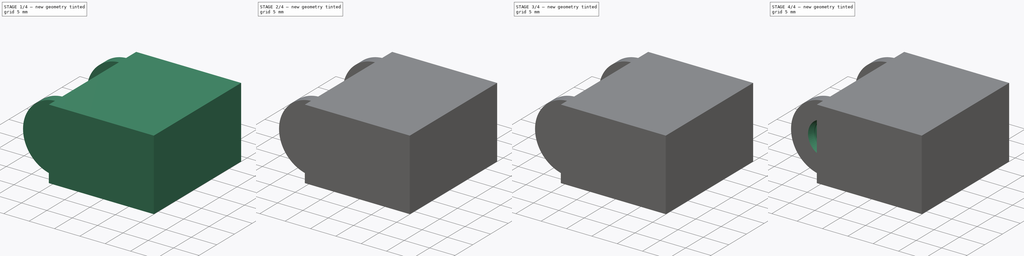
[diagram: build sequence overview — one tinted view per stage of 4, left to right]
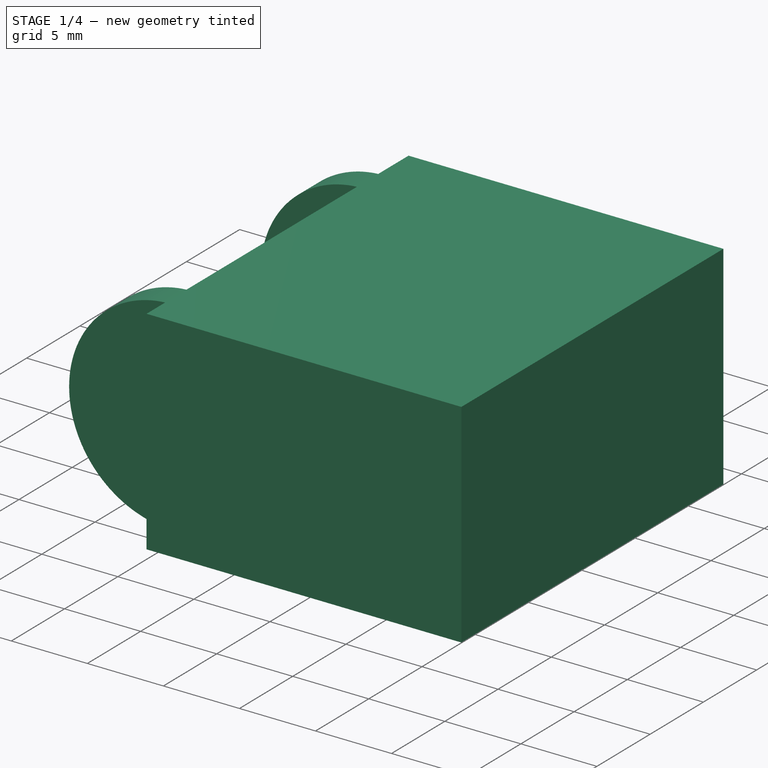
[diagram: stage 1 of 4 — iso view after this stage's code; geometry added in this stage tinted green]
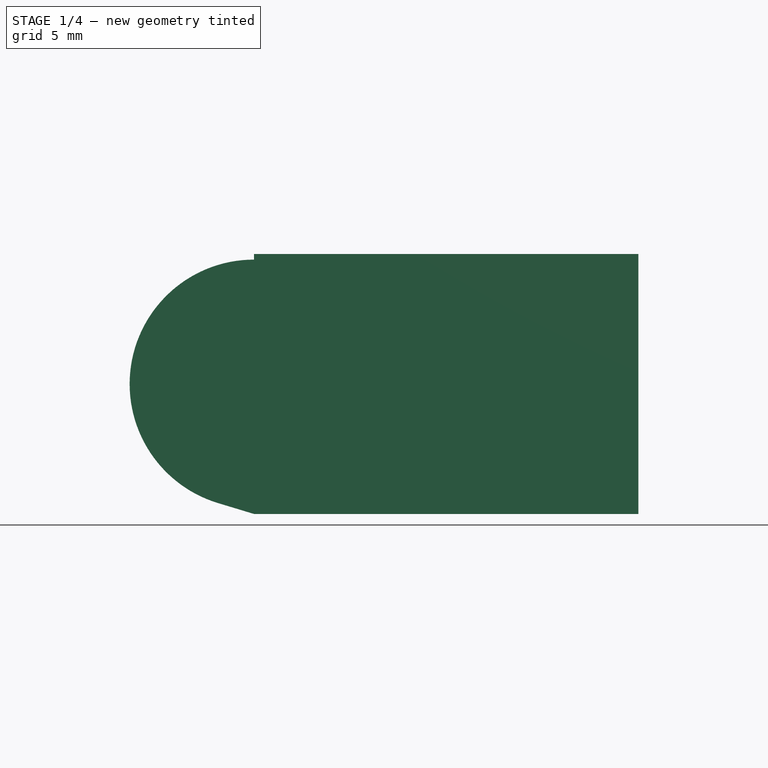
[diagram: stage 1 of 4 — front view after this stage's code; geometry added in this stage tinted green]
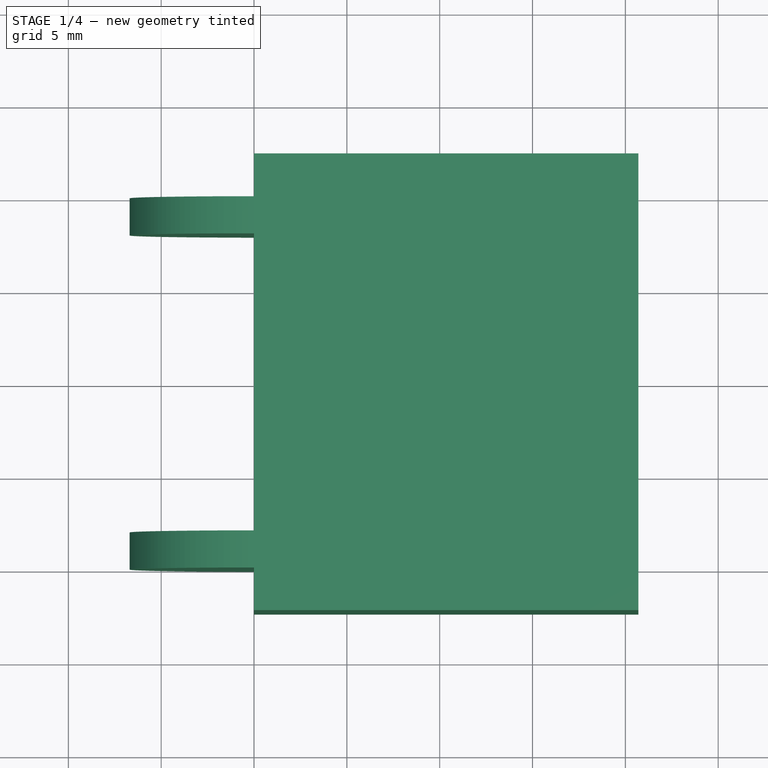
[diagram: stage 1 of 4 — top view after this stage's code; geometry added in this stage tinted green]
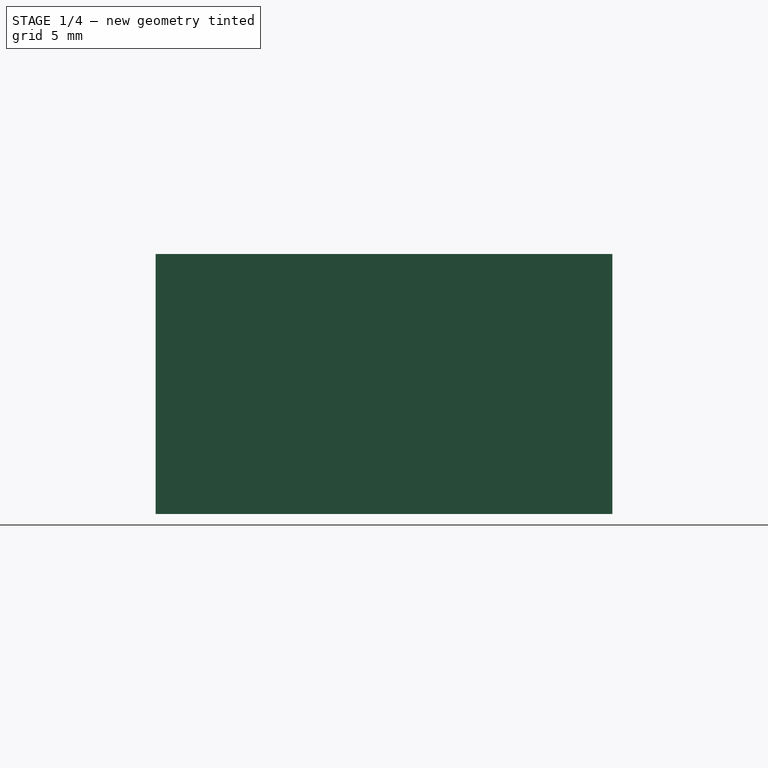
[diagram: stage 1 of 4 — right view after this stage's code; geometry added in this stage tinted green]
FCSTD DOCUMENT  (FreeCAD 0.18R4 (GitTag))
Label: Energy-Chain
License: All rights reserved
LicenseURL: http://en.wikipedia.org/wiki/All_rights_reserved
objects: Sketcher::SketchObject×10, PartDesign::Pocket×5, PartDesign::ShapeBinder×2, PartDesign::Pad×2, PartDesign::Mirrored×2, PartDesign::Body×2, Spreadsheet::Sheet×1, PartDesign::Revolution×1, PartDesign::Groove×1
note: 34 computed .brp shape members not serialized (recipe doc carries the construction recipe); baked Part::Feature solids carry a one-line shape summary decoded from their .brp

FEATURE [Spreadsheet::Sheet] Spreadsheet  label="params"
  cells = A1=Cross section dimensions; A2=Inner width; B2(iw)=16; A3=Inner height; B3(ih)=9.4; A4=wall thickness; B4(wt)=2; C4= min. 2.0 mm; A5=gap between parts; B5(gap)=0.3; A7=Dimensions of the chain-arch; A8=pitch; B8(pitch)=16; A9=No. of segments in arc; B9(nr_segments)=6; C9= (4 segments with a 45° angle between the segments); A12=Results; A13=bending diameter =; B13==pitch / tan(180 / (2 * nr_segments)); A14=installation height = ; B14==B13 + ih + 2 * (wt + gap)
FEATURE [Sketcher::SketchObject] Sketch  label="Mstr-Sketch-Side"
  MapMode = 5
  Placement = pos=(0,0,0) rot=(1,0,0;1.5708rad)
  expr: Constraints[43] = 180 / params.nr_segments
  expr: Constraints[32] = params.ih / 2
  expr: Constraints[22] = params.ih / 2
  expr: Constraints[13] = params.ih / 2 + params.wt + params.gap
  expr: Constraints[39] = params.ih / 2 + params.wt - params.gap / 2
  expr: Constraints[12] = params.ih / 2 + params.wt
  expr: Constraints[5] = params.ih / 2 + params.wt + params.gap / 2
  expr: Constraints[2] = params.pitch
  sketch-geometry (16):
    g0: ArcOfCircle CenterX=0 CenterY=0 CenterZ=0 NormalX=0 NormalY=0 NormalZ=1 AngleXU=0 Radius=6.7 StartAngle=1.5708 EndAngle=4.41856
    g1: ArcOfCircle CenterX=16 CenterY=0 CenterZ=0 NormalX=0 NormalY=0 NormalZ=1 AngleXU=0 Radius=7 StartAngle=1.86462 EndAngle=3.93163
    g2: Circle CenterX=0 CenterY=0 CenterZ=0 NormalX=0 NormalY=0 NormalZ=1 AngleXU=0 Radius=3.425
    g3: LineSegment StartX=-2.43076e-05 StartY=6.7 StartZ=0 EndX=13.9727 EndY=6.7 EndZ=0
    g4: LineSegment StartX=17.5588 StartY=6.7 StartZ=0 EndX=20.0703 EndY=2.35 EndZ=0
    g5: LineSegment StartX=20.7 StartY=-6e-16 StartZ=0 EndX=20.7 EndY=-7 EndZ=0
    g6: LineSegment StartX=-1.94045 StartY=-6.41285 StartZ=0 EndX=0 EndY=-7 EndZ=0
    g7: LineSegment StartX=0 StartY=-7 StartZ=0 EndX=11.0733 EndY=-7 EndZ=0
    g8: LineSegment StartX=13.9727 StartY=6.7 StartZ=0 EndX=17.5588 EndY=6.7 EndZ=0
    g9: LineSegment StartX=4.69998 StartY=6.7 StartZ=0 EndX=4.69998 EndY=-7 EndZ=0
    g10: LineSegment StartX=11.0733 StartY=-4.97267 StartZ=0 EndX=11.0733 EndY=-7 EndZ=0
    g11: LineSegment StartX=11.0733 StartY=-7 StartZ=0 EndX=20.7 EndY=-7 EndZ=0
    g12: ArcOfCircle CenterX=16 CenterY=0 CenterZ=0 NormalX=0 NormalY=0 NormalZ=1 AngleXU=0 Radius=4.7 StartAngle=0 EndAngle=0.523599
    g13: Circle [constr] CenterX=16 CenterY=0 CenterZ=0 NormalX=0 NormalY=0 NormalZ=1 AngleXU=0 Radius=7
    g14: Circle CenterX=16 CenterY=0 CenterZ=0 NormalX=0 NormalY=0 NormalZ=1 AngleXU=0 Radius=3.275
    g15: LineSegment [constr] StartX=20.7 StartY=-6e-16 StartZ=0 EndX=20.7 EndY=6.7 EndZ=0
  constraints (44):
    c: PointOnObject(g1,g-1)
    c: Coincident(g0,g-1)
    c: DistanceX(g0,g1) = 16
    c: Coincident(g2,g0)
    c: Horizontal(g3)
    c: Diameter(g2) = 6.85
    c: Coincident(g0,g3)
    c: Tangent(g3,g0)
    c: Vertical(g5)
    c: Coincident(g6,g0)
    c: Coincident(g7,g6)
    c: Horizontal(g7)
    c: DistanceY(g0,g0) = 6.7
    c: Radius(g1) = 7
    c: Tangent(g1,g7)
    c: Tangent(g0,g6)
    c: Coincident(g1,g3)
    c: Coincident(g8,g1)
    c: Horizontal(g8)
    c: Coincident(g4,g8)
    c: PointOnObject(g9,g3)
    c: Vertical(g9)
    c: DistanceX(g0,g9) = 4.7
    c: Vertical(g10)
    c: Coincident(g10,g7)
    c: Coincident(g10,g1)
    c: Coincident(g11,g7)
    c: Coincident(g11,g5)
    c: Horizontal(g11)
    c: Equal(g6,g10)
    c: Tangent(g4,g12) = 1.5708
    c: Tangent(g5,g12) = 1.5708
    c: Radius(g12) = 4.7
    c: Coincident(g12,g1)
    c: PointOnObject(g6,g-2)
    c: PointOnObject(g9,g7)
    c: Coincident(g13,g1)
    c: PointOnObject(g1,g13)
    c: Coincident(g14,g1)
    c: Diameter(g14) = 6.55
    c: Coincident(g15,g5)
    c: Vertical(g15)
    c: PointOnObject(g15,g8)
    c: Angle(g15,g4) = 0.523599
FEATURE [Sketcher::SketchObject] Sketch001
  MapMode = 5
  Support = -> [XY_Plane]
  expr: Constraints[31] = params.iw + 4 * params.wt + 2 * params.gap
  expr: Constraints[25] = params.ih / 2
  expr: Constraints[24] = params.ih / 2 + params.wt
  expr: Constraints[32] = params.pitch
  expr: Constraints[26] = params.wt
  expr: Constraints[34] = params.iw
  sketch-geometry (12):
    g0: LineSegment StartX=-6.7 StartY=10 StartZ=0 EndX=4.7 EndY=10 EndZ=0
    g1: LineSegment StartX=4.7 StartY=10 StartZ=0 EndX=4.7 EndY=12.3 EndZ=0
    g2: LineSegment StartX=4.7 StartY=12.3 StartZ=0 EndX=20.7 EndY=12.3 EndZ=0
    g3: LineSegment StartX=20.7 StartY=12.3 StartZ=0 EndX=20.7 EndY=-12.3 EndZ=0
    g4: LineSegment StartX=20.7 StartY=-12.3 StartZ=0 EndX=4.7 EndY=-12.3 EndZ=0
    g5: LineSegment StartX=4.7 StartY=-12.3 StartZ=0 EndX=4.7 EndY=-10 EndZ=0
    g6: LineSegment StartX=4.7 StartY=-10 StartZ=0 EndX=-6.7 EndY=-10 EndZ=0
    g7: LineSegment StartX=-6.7 StartY=-10 StartZ=0 EndX=-6.7 EndY=-8 EndZ=0
    g8: LineSegment StartX=-6.7 StartY=-8 StartZ=0 EndX=4.7 EndY=-8 EndZ=0
    g9: LineSegment StartX=4.7 StartY=-8 StartZ=0 EndX=4.7 EndY=8 EndZ=0
    g10: LineSegment StartX=4.7 StartY=8 StartZ=0 EndX=-6.7 EndY=8 EndZ=0
    g11: LineSegment StartX=-6.7 StartY=8 StartZ=0 EndX=-6.7 EndY=10 EndZ=0
  constraints (35):
    c: Horizontal(g0)
    c: Coincident(g0,g1)
    c: Vertical(g1)
    c: Coincident(g1,g2)
    c: Horizontal(g2)
    c: Coincident(g2,g3)
    c: Vertical(g3)
    c: Coincident(g3,g4)
    c: Horizontal(g4)
    c: Coincident(g4,g5)
    c: Vertical(g5)
    c: Coincident(g5,g6)
    c: Horizontal(g6)
    c: Coincident(g6,g7)
    c: Vertical(g7)
    c: Coincident(g7,g8)
    c: Horizontal(g8)
    c: Coincident(g8,g9)
    c: Vertical(g9)
    c: Coincident(g9,g10)
    c: Horizontal(g10)
    c: Coincident(g10,g11)
    c: Coincident(g11,g0)
    c: Equal(g10,g8)
    c: DistanceX(g0,g-1) = 6.7
    c: DistanceX(g-1,g9) = 4.7
    c: DistanceY(g11,g11) = 2
    c: Symmetric(g1,g4,g-1)
    c: Equal(g6,g8)
    c: Equal(g8,g0)
    c: Equal(g5,g1)
    c: DistanceY(g3,g3) = 24.6
    c: DistanceX(g4,g4) = 16
    c: Equal(g11,g7)
    c: DistanceY(g9,g9) = 16
FEATURE [PartDesign::ShapeBinder] ShapeBinder
  Placement = pos=(0,0,0) rot=(1,0,0;1.5708rad)
  Support = -> [Sketch]
  TraceSupport = false
FEATURE [PartDesign::Pad] Pad
  Length = 14
  Length2 = 100
  Midplane = true
  Profile = -> Sketch001
  Type = 0
  expr: Length = params.ih + 2 * (params.wt + params.gap)
FEATURE [Sketcher::SketchObject] Sketch002
  ExternalGeometry = -> [ShapeBinder]
  MapMode = 5
  Placement = pos=(0,0,0) rot=(1,0,0;1.5708rad)
  Support = -> [XZ_Plane]
  sketch-geometry (15):
    g0: ArcOfCircle CenterX=0 CenterY=0 CenterZ=0 NormalX=0 NormalY=0 NormalZ=1 AngleXU=0 Radius=6.7 StartAngle=1.5708 EndAngle=4.41856
    g1: LineSegment StartX=-1.94043 StartY=-6.41286 StartZ=0 EndX=0 EndY=-7 EndZ=0
    g2: LineSegment StartX=20.7 StartY=-7 StartZ=0 EndX=20.7 EndY=0 EndZ=0
    g3: ArcOfCircle CenterX=16 CenterY=0 CenterZ=0 NormalX=0 NormalY=0 NormalZ=1 AngleXU=0 Radius=4.7 StartAngle=0 EndAngle=0.523599
    g4: LineSegment StartX=20.0703 StartY=2.35 StartZ=0 EndX=17.5588 EndY=6.7 EndZ=0
    g5: LineSegment StartX=17.5588 StartY=6.7 StartZ=0 EndX=-3.3581e-09 EndY=6.7 EndZ=0
    g6: LineSegment StartX=-7.7 StartY=7.7 StartZ=0 EndX=21.7 EndY=7.7 EndZ=0
    g7: LineSegment StartX=21.7 StartY=7.7 StartZ=0 EndX=21.7 EndY=-8 EndZ=0
    g8: LineSegment StartX=21.7 StartY=-8 StartZ=0 EndX=-7.7 EndY=-8 EndZ=0
    g9: LineSegment StartX=-7.7 StartY=-8 StartZ=0 EndX=-7.7 EndY=7.7 EndZ=0
    g10: LineSegment [constr] StartX=-3.3581e-09 StartY=6.7 StartZ=0 EndX=-3.3581e-09 EndY=7.7 EndZ=0
    g11: LineSegment [constr] StartX=0 StartY=-7 StartZ=0 EndX=0 EndY=-8 EndZ=0
    g12: LineSegment [constr] StartX=-6.7 StartY=0 StartZ=0 EndX=-7.7 EndY=0 EndZ=0
    g13: LineSegment [constr] StartX=20.7 StartY=0 StartZ=0 EndX=21.7 EndY=0 EndZ=0
    g14: LineSegment StartX=20.7 StartY=-7 StartZ=0 EndX=0 EndY=-7 EndZ=0
  constraints (41):
    c: Coincident(g0,g-1)
    c: Tangent(g0,g1) = -1.5708
    c: PointOnObject(g2,g-1)
    c: Tangent(g2,g3) = -1.5708
    c: Tangent(g3,g4) = -1.5708
    c: Coincident(g4,g5)
    c: Coincident(g5,g0)
    c: Coincident(g-4,g4)
    c: Coincident(g-3,g3)
    c: Tangent(g5,g0)
    c: Horizontal(g5)
    c: PointOnObject(g1,g-2)
    c: Coincident(g6,g7)
    c: Coincident(g7,g8)
    c: Coincident(g8,g9)
    c: Coincident(g9,g6)
    c: Horizontal(g6)
    c: Horizontal(g8)
    c: Vertical(g7)
    c: Vertical(g9)
    c: Coincident(g10,g0)
    c: PointOnObject(g10,g6)
    c: Coincident(g11,g1)
    c: PointOnObject(g11,g8)
    c: Vertical(g11)
    c: Vertical(g10)
    c: PointOnObject(g12,g0)
    c: PointOnObject(g12,g9)
    c: Horizontal(g12)
    c: PointOnObject(g13,g7)
    c: Horizontal(g13)
    c: Coincident(g13,g2)
    c: PointOnObject(g12,g-1)
    c: Equal(g10,g12)
    c: Equal(g12,g11)
    c: Equal(g11,g13)
    c: DistanceX(g12,g12) = 1
    c: Coincident(g14,g1)
    c: Horizontal(g14)
    c: Coincident(g2,g14)
    c: Coincident(g2,g-5)
FEATURE [PartDesign::Pocket] Pocket
  BaseFeature = -> Pad
  Length = 26
  Length2 = 100
  Midplane = true
  Profile = -> Sketch002
  Type = 0
  expr: Length = params.iw + 4 * params.wt + 2
FEATURE [PartDesign::Body] Body  label="Chain-Link"
  Group = -> [ShapeBinder,Sketch001,Pad,Sketch002,Pocket,Sketch003,Pocket001,Sketch004,Pocket002,Sketch005,Pocket003,Sketch006,Revolution,Mirrored,Sketch007,Groove,Mirrored001,Sketch008,Pocket004]
  Origin = -> Origin
  Tip = -> Pocket004
FEATURE [PartDesign::ShapeBinder] ShapeBinder001
  Placement = pos=(0,0,0) rot=(1,0,0;1.5708rad)
  Support = -> [Sketch]
  TraceSupport = false
FEATURE [Sketcher::SketchObject] Sketch009
  MapMode = 5
  Support = -> [XY_Plane001]
  expr: Constraints[6] = params.ih / 2 + params.pitch
  expr: Constraints[5] = params.iw + 4 * params.wt + 2 * params.gap
  sketch-geometry (4):
    g0: LineSegment StartX=0 StartY=12.3 StartZ=0 EndX=20.7 EndY=12.3 EndZ=0
    g1: LineSegment StartX=20.7 StartY=12.3 StartZ=0 EndX=20.7 EndY=-12.3 EndZ=0
    g2: LineSegment StartX=20.7 StartY=-12.3 StartZ=0 EndX=0 EndY=-12.3 EndZ=0
    g3: LineSegment StartX=0 StartY=12.3 StartZ=0 EndX=0 EndY=-12.3 EndZ=0
  constraints (11):
    c: Horizontal(g0)
    c: Coincident(g0,g1)
    c: Vertical(g1)
    c: Coincident(g1,g2)
    c: Horizontal(g2)
    c: DistanceY(g1,g1) = 24.6
    c: DistanceX(g1) = 20.7
    c: PointOnObject(g3,g-2)
    c: Coincident(g2,g3)
    c: Coincident(g0,g3)
    c: Symmetric(g2,g0,g-1)
FEATURE [PartDesign::Pad] Pad001
  Length = 14
  Length2 = 100
  Midplane = true
  Profile = -> Sketch009
  Type = 0
  expr: Length = params.ih + 2 * (params.wt + params.gap)
FEATURE [PartDesign::Body] Body001  label="Endpiece_rigid_ PlugSide"
  Group = -> [ShapeBinder001,Sketch009,Pad001]
  Origin = -> Origin001
  Tip = -> Pad001
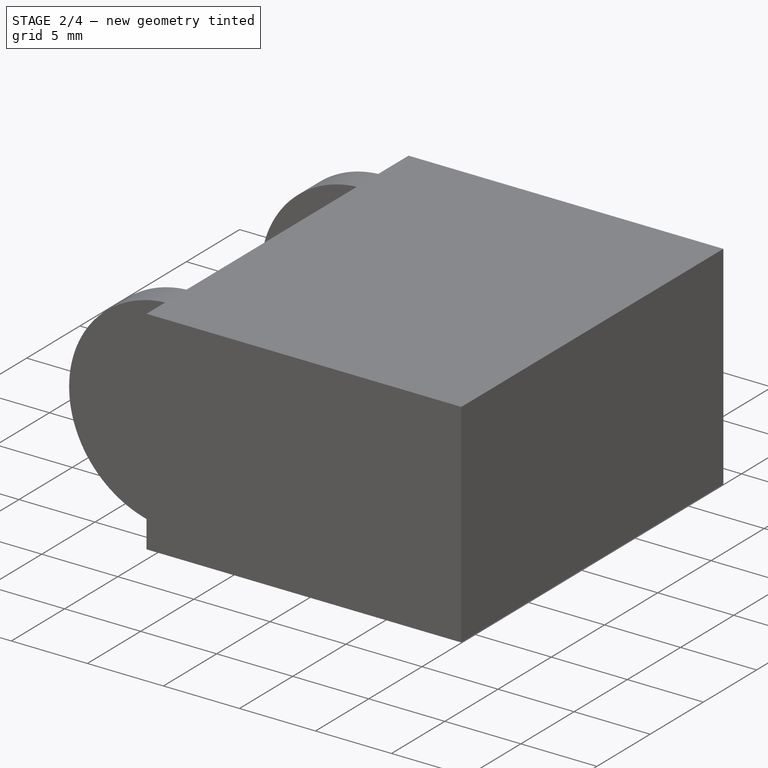
[diagram: stage 2 of 4 — iso view after this stage's code; geometry added in this stage tinted green]
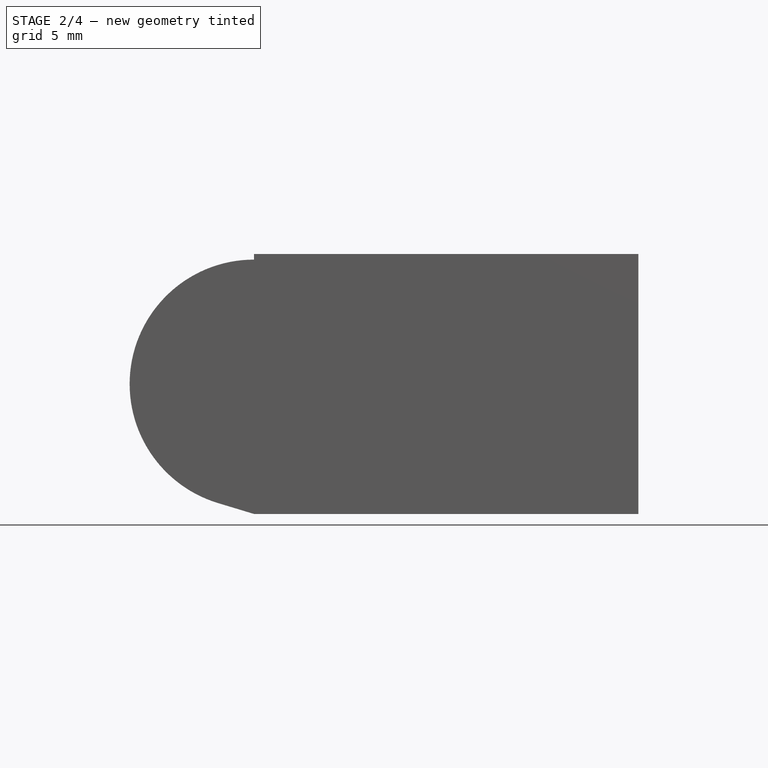
[diagram: stage 2 of 4 — front view after this stage's code; geometry added in this stage tinted green]
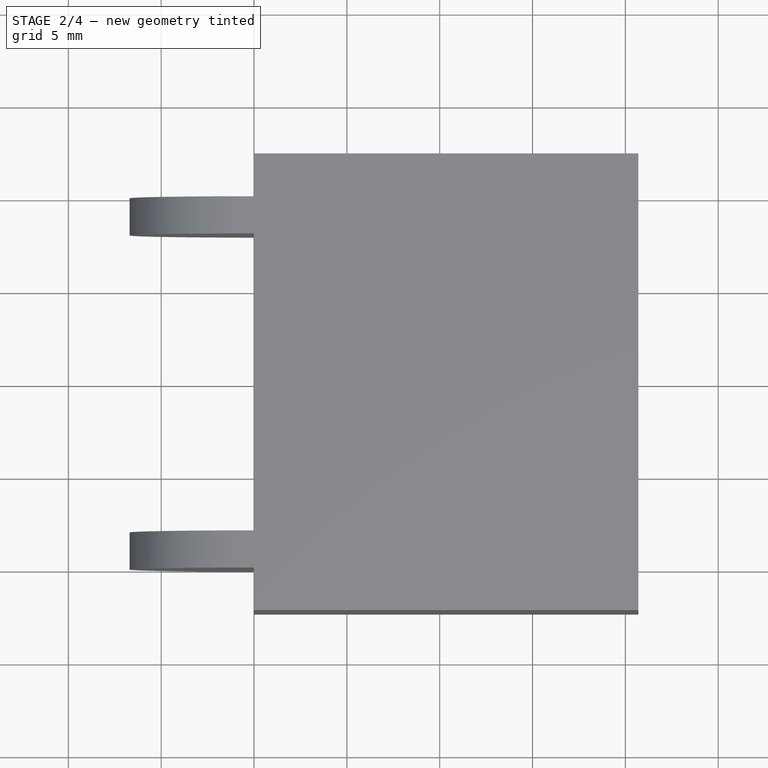
[diagram: stage 2 of 4 — top view after this stage's code; geometry added in this stage tinted green]
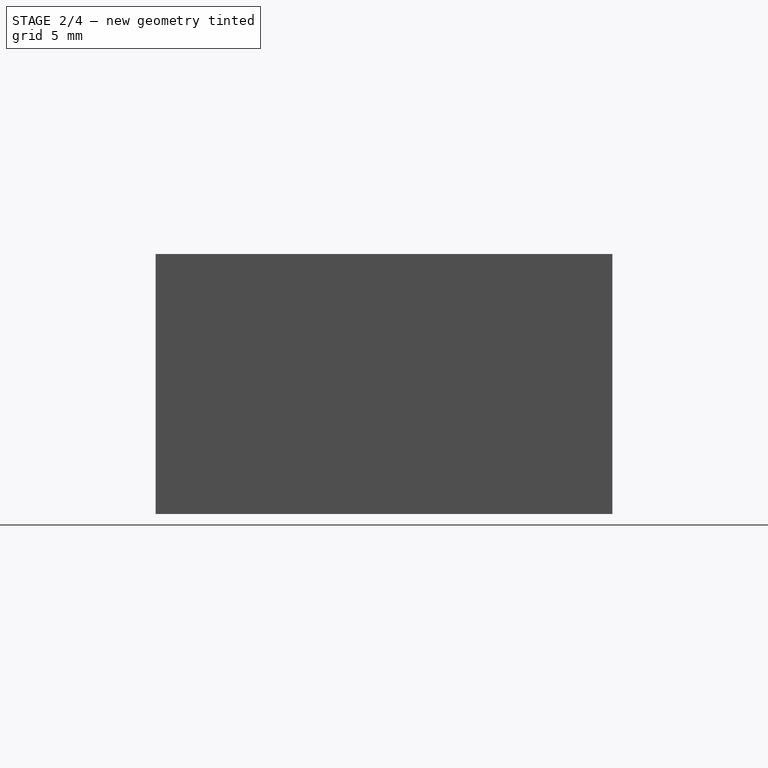
[diagram: stage 2 of 4 — right view after this stage's code; geometry added in this stage tinted green]
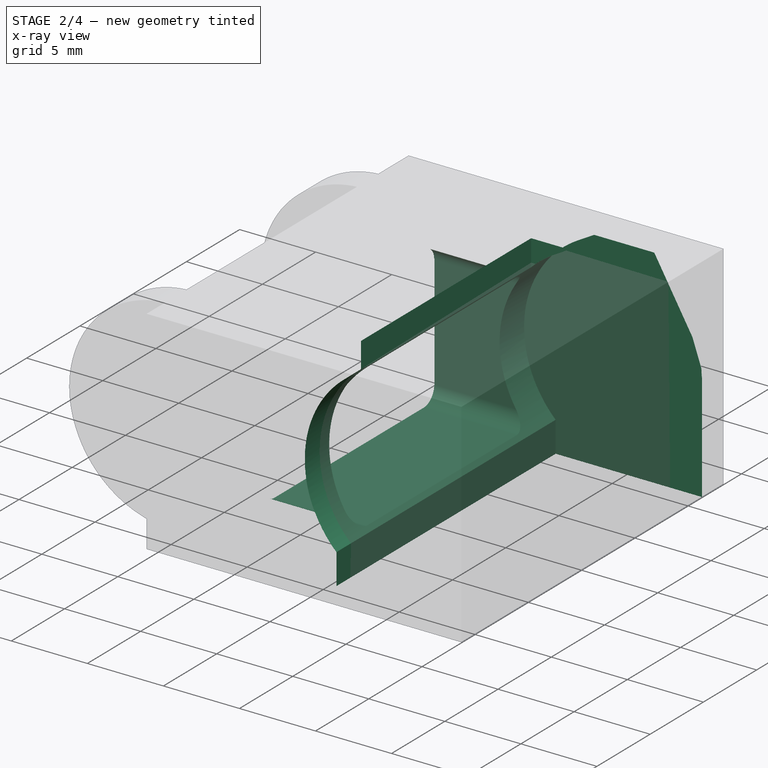
[diagram: stage 2 of 4 — x-ray composite at the iso view; earlier geometry ghosted, this stage's added geometry solid]
FEATURE [Sketcher::SketchObject] Sketch003
  ExternalGeometry = -> [ShapeBinder]
  MapMode = 5
  Placement = pos=(0,0,0) rot=(1,0,0;1.5708rad)
  Support = -> [XZ_Plane]
  sketch-geometry (8):
    g0: LineSegment StartX=11.0733 StartY=-4.97267 StartZ=0 EndX=11.0733 EndY=-7 EndZ=0
    g1: LineSegment StartX=11.0733 StartY=-7 StartZ=0 EndX=20.7 EndY=-7 EndZ=0
    g2: LineSegment StartX=20.7 StartY=-7 StartZ=0 EndX=20.7 EndY=0 EndZ=0
    g3: ArcOfCircle CenterX=16 CenterY=0 CenterZ=0 NormalX=0 NormalY=0 NormalZ=1 AngleXU=0 Radius=4.7 StartAngle=0 EndAngle=0.523599
    g4: LineSegment StartX=20.0703 StartY=2.35 StartZ=0 EndX=17.5588 EndY=6.7 EndZ=0
    g5: ArcOfCircle CenterX=16 CenterY=0 CenterZ=0 NormalX=0 NormalY=0 NormalZ=1 AngleXU=0 Radius=7 StartAngle=2.09439 EndAngle=3.93163
    g6: LineSegment StartX=12.5 StartY=6.06219 StartZ=0 EndX=13.6047 EndY=6.7 EndZ=0
    g7: LineSegment StartX=13.6047 StartY=6.7 StartZ=0 EndX=17.5588 EndY=6.7 EndZ=0
  constraints (19):
    c: Coincident(g0,g-5)
    c: Vertical(g0)
    c: Coincident(g0,g1)
    c: Coincident(g1,g-4)
    c: Horizontal(g1)
    c: Coincident(g1,g2)
    c: PointOnObject(g2,g-1)
    c: Tangent(g2,g3) = -1.5708
    c: Tangent(g3,g4) = -1.5708
    c: Coincident(g5,g0)
    c: Coincident(g3,g-3)
    c: Coincident(g5,g3)
    c: Coincident(g4,g-6)
    c: Coincident(g6,g5)
    c: Coincident(g7,g6)
    c: Coincident(g7,g4)
    c: Horizontal(g7)
    c: Tangent(g6,g5)
    c: Perpendicular(g6,g4)
FEATURE [PartDesign::Pocket] Pocket001
  BaseFeature = -> Pocket
  Length = 20.6
  Length2 = 100
  Midplane = true
  Profile = -> Sketch003
  Type = 0
  expr: Length = params.iw + 2 * (params.wt + params.gap)
FEATURE [Sketcher::SketchObject] Sketch004
  MapMode = 5
  Placement = pos=(0,0,0) rot=(0.57735,0.57735,0.57735;2.0944rad)
  Support = -> [YZ_Plane]
  expr: Constraints[18] = params.ih
  expr: Constraints[17] = params.iw
  sketch-geometry (8):
    g0: LineSegment StartX=-7 StartY=4.7 StartZ=0 EndX=7 EndY=4.7 EndZ=0
    g1: LineSegment StartX=8 StartY=3.7 StartZ=0 EndX=8 EndY=-3.7 EndZ=0
    g2: LineSegment StartX=7 StartY=-4.7 StartZ=0 EndX=-7 EndY=-4.7 EndZ=0
    g3: LineSegment StartX=-8 StartY=-3.7 StartZ=0 EndX=-8 EndY=3.7 EndZ=0
    g4: ArcOfCircle CenterX=-7 CenterY=3.7 CenterZ=0 NormalX=0 NormalY=0 NormalZ=1 AngleXU=0 Radius=1 StartAngle=1.5708 EndAngle=3.14159
    g5: ArcOfCircle CenterX=7 CenterY=3.7 CenterZ=0 NormalX=0 NormalY=0 NormalZ=1 AngleXU=0 Radius=1 StartAngle=-2.73888e-11 EndAngle=1.5708
    g6: ArcOfCircle CenterX=7 CenterY=-3.7 CenterZ=0 NormalX=0 NormalY=0 NormalZ=1 AngleXU=0 Radius=1 StartAngle=4.71239 EndAngle=6.28319
    g7: ArcOfCircle CenterX=-7 CenterY=-3.7 CenterZ=0 NormalX=0 NormalY=0 NormalZ=1 AngleXU=0 Radius=1 StartAngle=3.14159 EndAngle=4.71239
  constraints (19):
    c: Horizontal(g0)
    c: Horizontal(g2)
    c: Vertical(g1)
    c: Vertical(g3)
    c: Tangent(g3,g4) = 1.5708
    c: Tangent(g0,g4) = 1.5708
    c: Tangent(g0,g5) = 1.5708
    c: Tangent(g1,g5) = 1.5708
    c: Tangent(g1,g6) = 1.5708
    c: Tangent(g2,g6) = 1.5708
    c: Tangent(g2,g7) = 1.5708
    c: Tangent(g3,g7) = 1.5708
    c: Equal(g7,g4)
    c: Equal(g4,g5)
    c: Equal(g5,g6)
    c: Symmetric(g7,g5,g-1)
    c: Radius(g7) = 1
    c: DistanceX(g3,g1) = 16
    c: DistanceY(g2,g0) = 9.4
FEATURE [PartDesign::Pocket] Pocket002  label="Pocket_tunnel"
  BaseFeature = -> Pocket001
  Length = 5
  Length2 = 100
  Midplane = true
  Profile = -> Sketch004
  Type = 1
FEATURE [Sketcher::SketchObject] Sketch005
  ExternalGeometry = -> [ShapeBinder]
  MapMode = 5
  Support = -> [XY_Plane]
  expr: Constraints[10] = params.iw
  expr: Constraints[9] = params.pitch
  sketch-geometry (4):
    g0: LineSegment StartX=11.0733 StartY=8 StartZ=0 EndX=16 EndY=8 EndZ=0
    g1: LineSegment StartX=16 StartY=8 StartZ=0 EndX=16 EndY=-8 EndZ=0
    g2: LineSegment StartX=16 StartY=-8 StartZ=0 EndX=11.0733 EndY=-8 EndZ=0
    g3: LineSegment StartX=11.0733 StartY=-8 StartZ=0 EndX=11.0733 EndY=8 EndZ=0
  constraints (11):
    c: Coincident(g0,g1)
    c: Coincident(g1,g2)
    c: Coincident(g2,g3)
    c: Coincident(g3,g0)
    c: Horizontal(g0)
    c: Horizontal(g2)
    c: Vertical(g1)
    c: PointOnObject(g-3,g3)
    c: Symmetric(g2,g0,g-1)
    c: DistanceX(g-1,g1) = 16
    c: DistanceY(g3,g3) = 16
FEATURE [PartDesign::Pocket] Pocket003
  BaseFeature = -> Pocket002
  Length = 5
  Length2 = 100
  Profile = -> Sketch005
  Reversed = true
  Type = 1
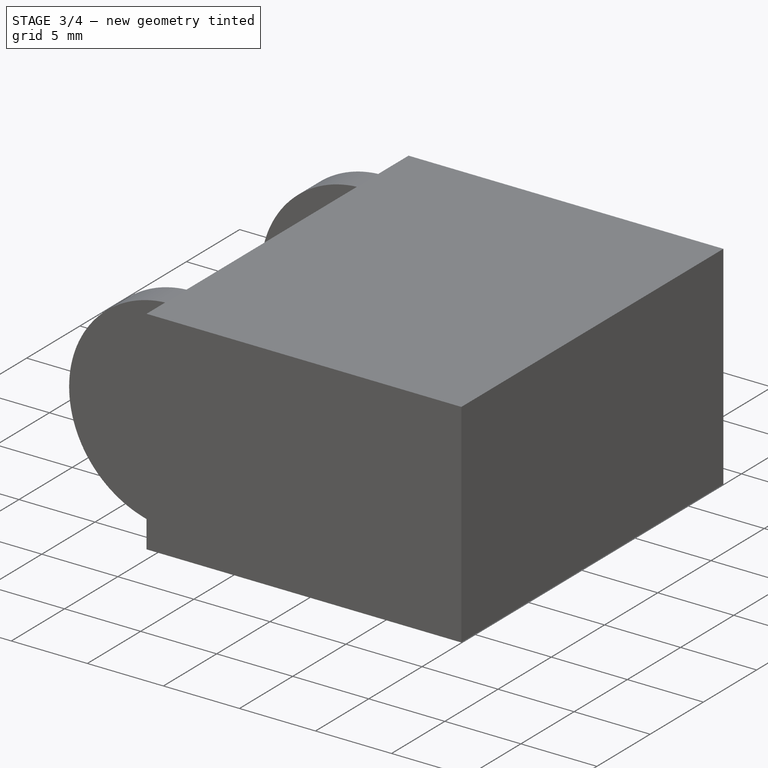
[diagram: stage 3 of 4 — iso view after this stage's code; geometry added in this stage tinted green]
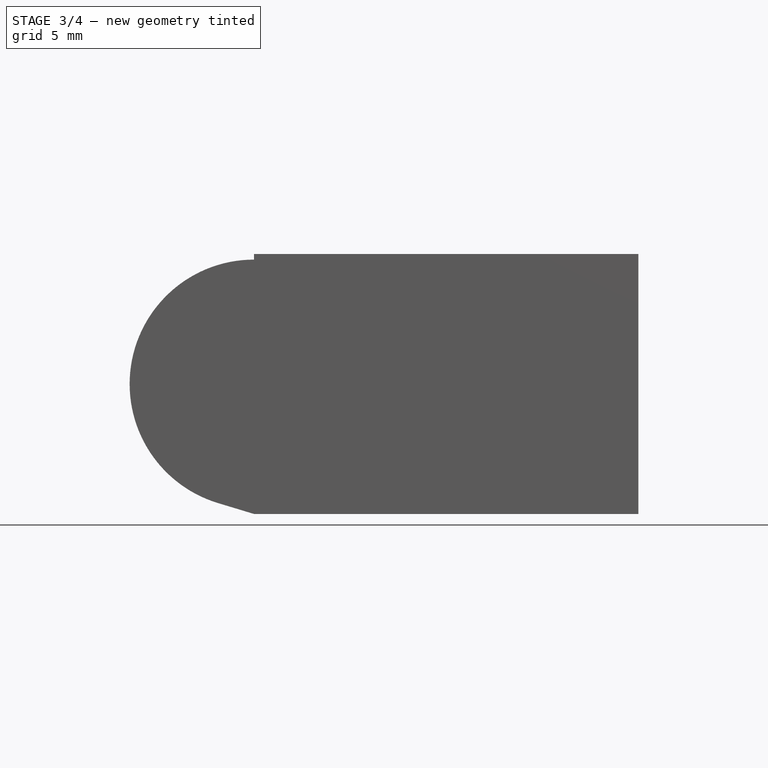
[diagram: stage 3 of 4 — front view after this stage's code; geometry added in this stage tinted green]
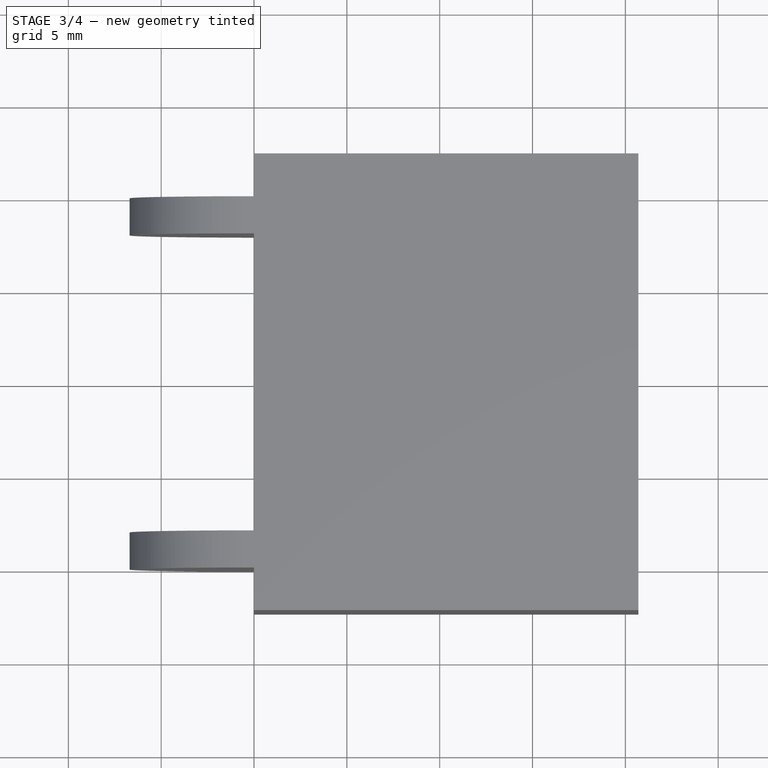
[diagram: stage 3 of 4 — top view after this stage's code; geometry added in this stage tinted green]
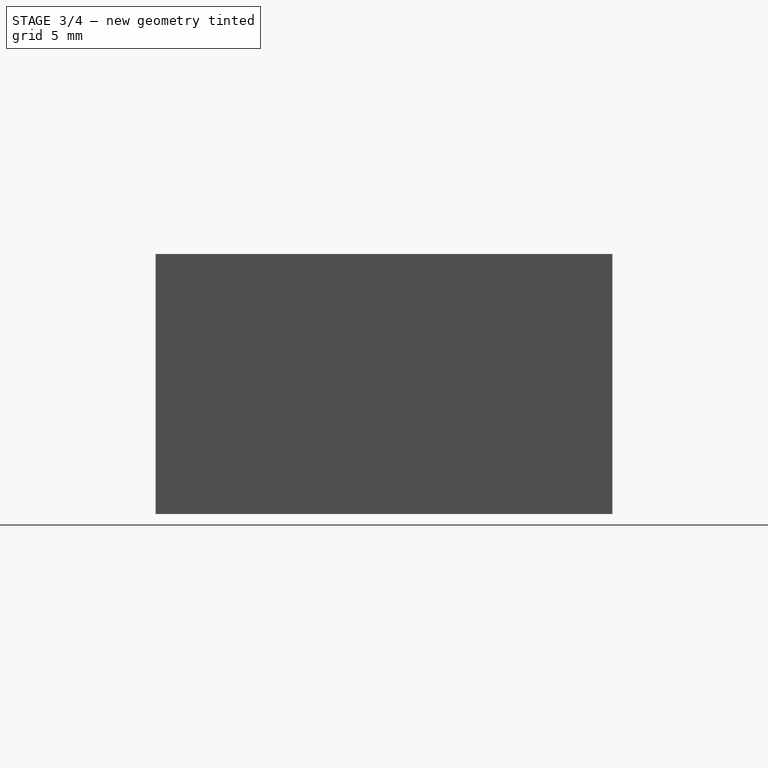
[diagram: stage 3 of 4 — right view after this stage's code; geometry added in this stage tinted green]
FEATURE [Sketcher::SketchObject] Sketch006
  MapMode = 5
  Support = -> [XY_Plane]
  expr: Constraints[11] = params.wt * 0.75
  expr: Constraints[9] = (params.wt + params.ih / 2) / 2
  expr: Constraints[8] = params.pitch
  expr: Constraints[6] = params.iw / 2 + params.wt + params.gap
  sketch-geometry (4):
    g0: LineSegment StartX=16 StartY=10.3 StartZ=0 EndX=19.35 EndY=10.3 EndZ=0
    g1: LineSegment StartX=19.35 StartY=10.3 StartZ=0 EndX=18.804 EndY=8.8 EndZ=0
    g2: LineSegment StartX=18.804 StartY=8.8 StartZ=0 EndX=16 EndY=8.8 EndZ=0
    g3: LineSegment StartX=16 StartY=8.8 StartZ=0 EndX=16 EndY=10.3 EndZ=0
  constraints (12):
    c: Horizontal(g0)
    c: Coincident(g0,g1)
    c: Coincident(g1,g2)
    c: Horizontal(g2)
    c: Coincident(g2,g3)
    c: Vertical(g3)
    c: DistanceY(g-1,g0) = 10.3
    c: Coincident(g3,g0)
    c: DistanceX(g-1,g2) = 16
    c: DistanceX(g0,g0) = 3.35
    c: Angle(g0,g1) = 1.22173
    c: DistanceY(g3,g3) = 1.5
FEATURE [PartDesign::Revolution] Revolution
  Angle = 360
  Axis = (0,1,0)
  Base = (16,8.8,0)
  BaseFeature = -> Pocket003
  Profile = -> Sketch006
  ReferenceAxis = -> Sketch006 [Edge4]
  Reversed = true
FEATURE [PartDesign::Mirrored] Mirrored
  BaseFeature = -> Revolution
  MirrorPlane = -> XZ_Plane
  Originals = -> [Revolution]
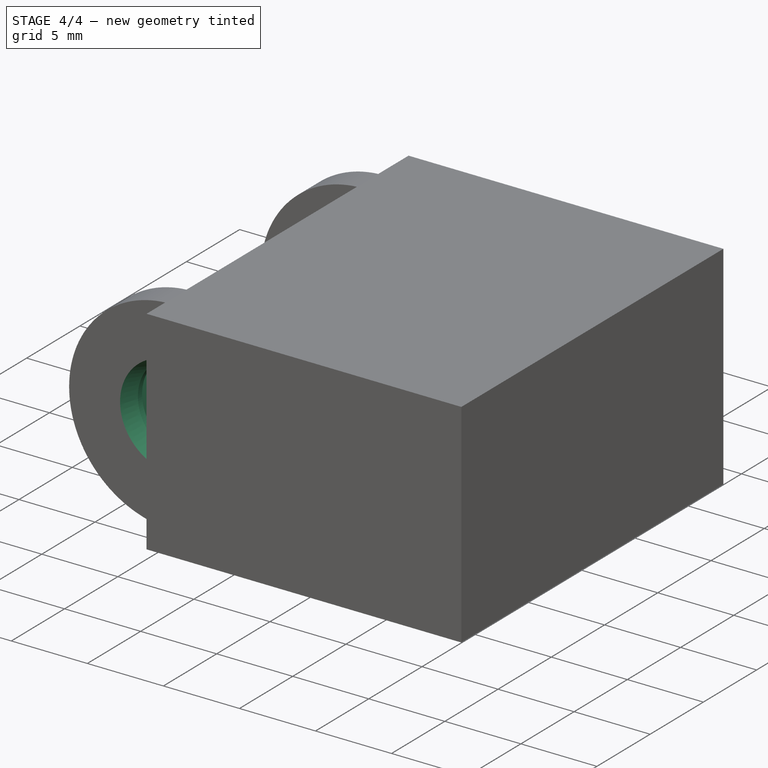
[diagram: stage 4 of 4 — iso view after this stage's code; geometry added in this stage tinted green]
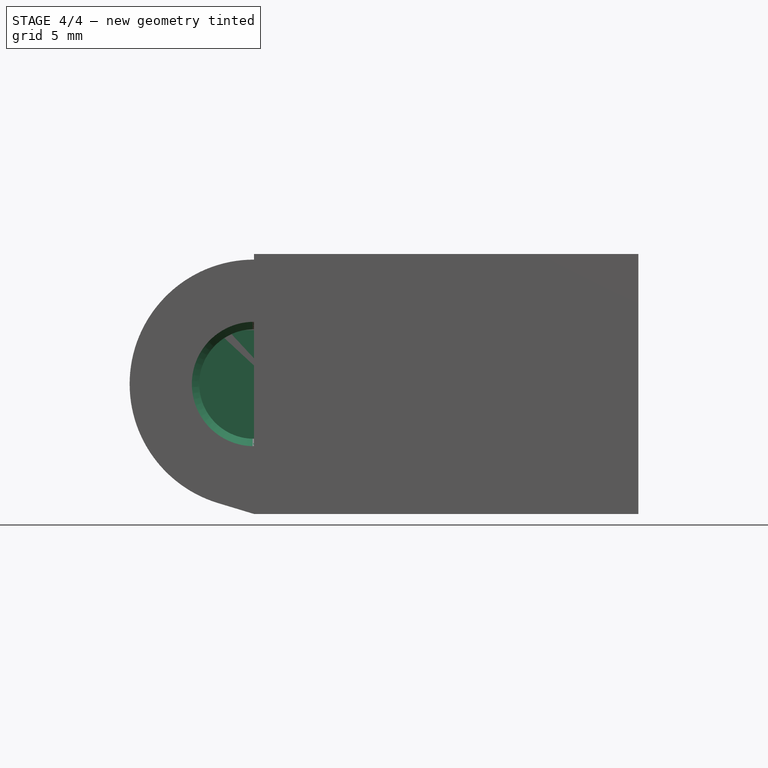
[diagram: stage 4 of 4 — front view after this stage's code; geometry added in this stage tinted green]
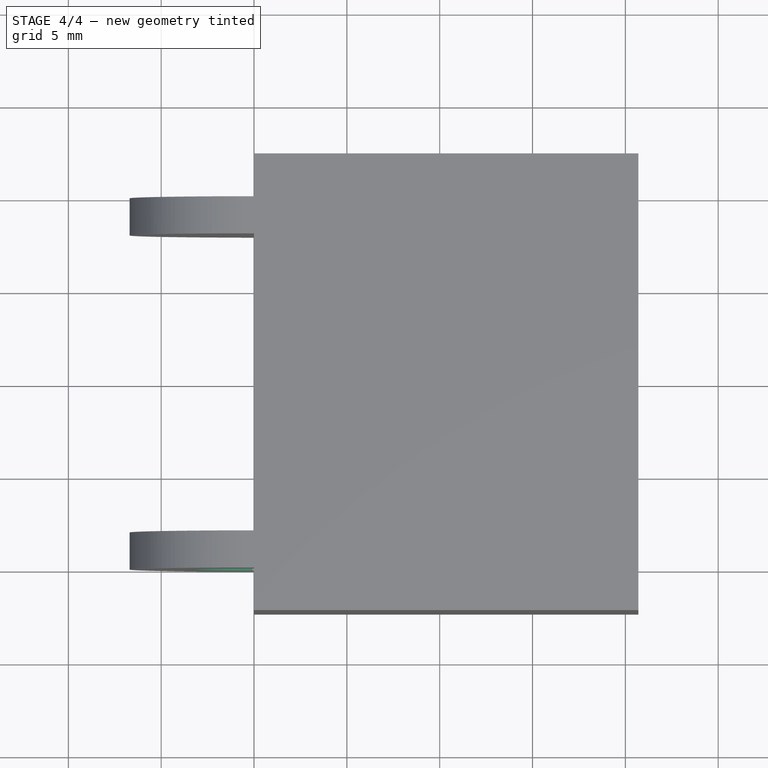
[diagram: stage 4 of 4 — top view after this stage's code; geometry added in this stage tinted green]
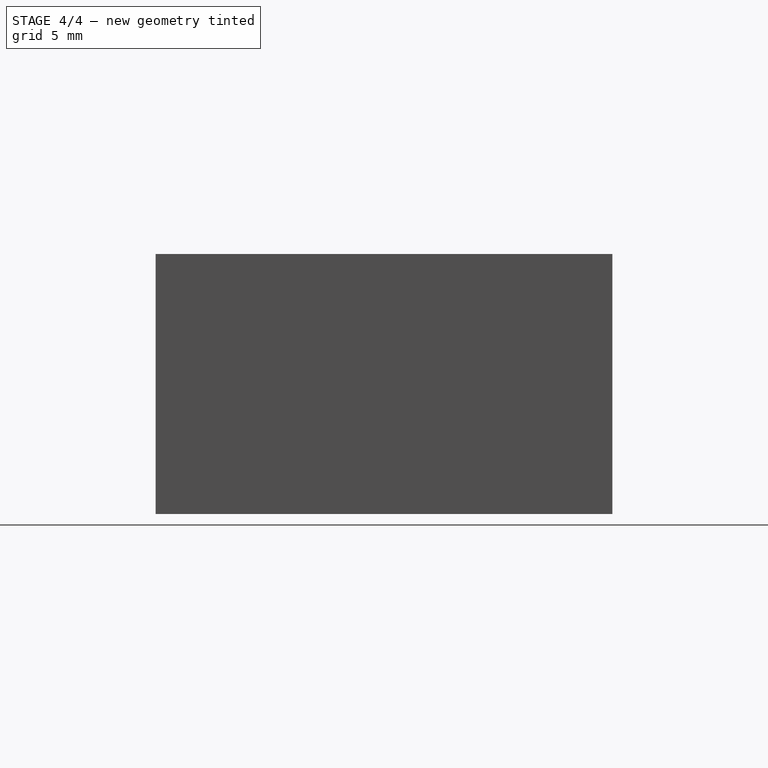
[diagram: stage 4 of 4 — right view after this stage's code; geometry added in this stage tinted green]
FEATURE [Sketcher::SketchObject] Sketch007
  MapMode = 5
  Support = -> [XY_Plane]
  expr: Constraints[14] = params.wt * 0.2
  expr: Constraints[10] = params.iw / 2 + params.wt
  expr: Constraints[8] = (params.wt + params.ih / 2) / 2
  expr: Constraints[7] = params.wt * 0.75
  sketch-geometry (5):
    g0: LineSegment StartX=0 StartY=10 StartZ=0 EndX=3.35 EndY=10 EndZ=0
    g1: LineSegment StartX=3.35 StartY=10 StartZ=0 EndX=2.94963 EndY=8.9 EndZ=0
    g2: LineSegment StartX=2.94963 StartY=8.5 StartZ=0 EndX=0 EndY=8.5 EndZ=0
    g3: LineSegment StartX=0 StartY=8.5 StartZ=0 EndX=0 EndY=10 EndZ=0
    g4: LineSegment StartX=2.94963 StartY=8.9 StartZ=0 EndX=2.94963 EndY=8.5 EndZ=0
  constraints (15):
    c: PointOnObject(g0,g-2)
    c: Horizontal(g0)
    c: Coincident(g0,g1)
    c: PointOnObject(g2,g-2)
    c: Horizontal(g2)
    c: Coincident(g2,g3)
    c: Coincident(g3,g0)
    c: DistanceY(g3,g3) = 1.5
    c: DistanceX(g0,g0) = 3.35
    c: Angle(g0,g1) = 1.22173
    c: DistanceY(g-1,g0) = 10
    c: Vertical(g4)
    c: Coincident(g1,g4)
    c: Coincident(g2,g4)
    c: DistanceY(g4,g4) = 0.4
FEATURE [PartDesign::Groove] Groove
  Angle = 360
  Axis = (1e-16,1,-1e-16)
  Base = (0,0,0)
  BaseFeature = -> Mirrored
  Profile = -> Sketch007
  ReferenceAxis = -> Y_Axis
FEATURE [PartDesign::Mirrored] Mirrored001
  BaseFeature = -> Groove
  MirrorPlane = -> XZ_Plane
  Originals = -> [Groove]
FEATURE [Sketcher::SketchObject] Sketch008
  MapMode = 5
  Support = -> [XY_Plane]
  expr: Constraints[9] = params.wt * 0.75
  expr: Constraints[8] = params.iw / 2 + params.wt + params.gap
  expr: Constraints[5] = params.pitch
  expr: Constraints[4] = params.pitch + params.ih / 2
  sketch-geometry (4):
    g0: LineSegment StartX=16 StartY=8.8 StartZ=0 EndX=16 EndY=-8.8 EndZ=0
    g1: LineSegment StartX=16 StartY=-8.8 StartZ=0 EndX=20.7 EndY=-10.3 EndZ=0
    g2: LineSegment StartX=20.7 StartY=-10.3 StartZ=0 EndX=20.7 EndY=10.3 EndZ=0
    g3: LineSegment StartX=20.7 StartY=10.3 StartZ=0 EndX=16 EndY=8.8 EndZ=0
  constraints (10):
    c: Coincident(g0,g1)
    c: Coincident(g1,g2)
    c: Coincident(g2,g3)
    c: Coincident(g3,g0)
    c: DistanceX(g-1,g1) = 20.7
    c: DistanceX(g-1,g0) = 16
    c: Symmetric(g0,g0,g-1)
    c: Symmetric(g1,g2,g-1)
    c: DistanceY(g-1,g2) = 10.3
    c: DistanceY(g0,g2) = 1.5
FEATURE [PartDesign::Pocket] Pocket004
  BaseFeature = -> Mirrored001
  Length = 5
  Length2 = 100
  Midplane = true
  Profile = -> Sketch008
  Type = 1
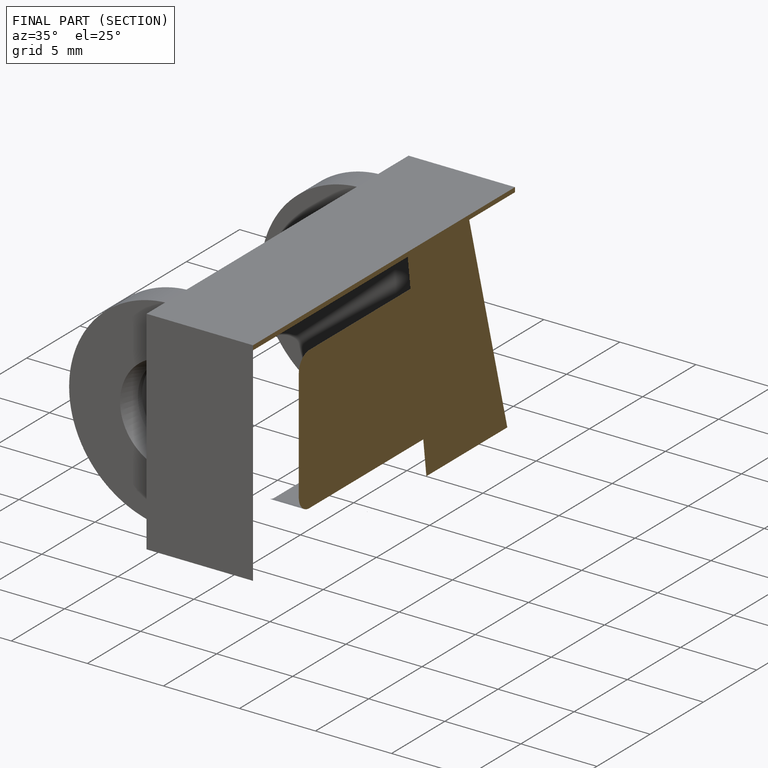
[diagram: finished part — half-section view (interior)]
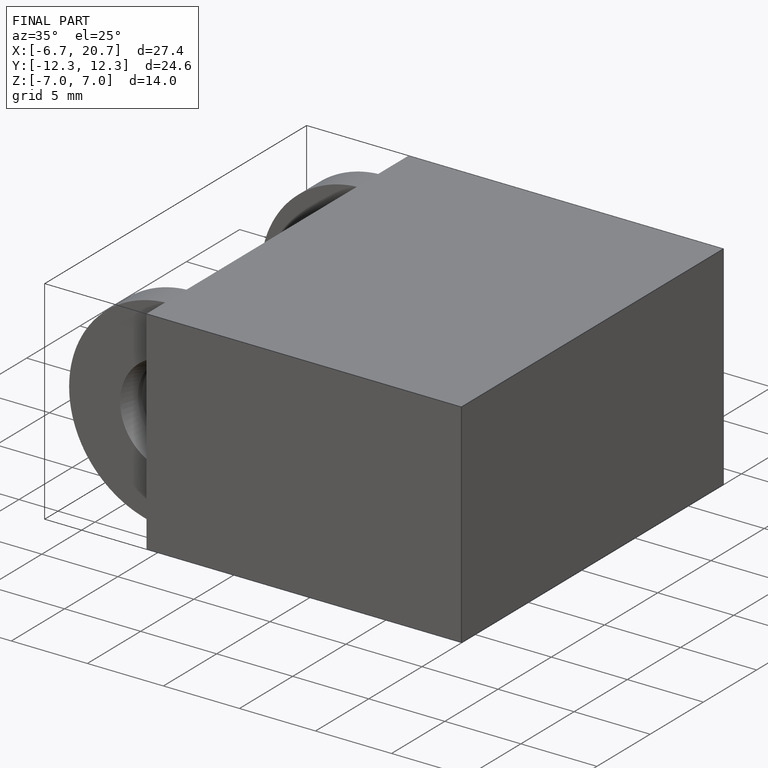
[diagram: finished part — iso view with bounding-box wireframe]
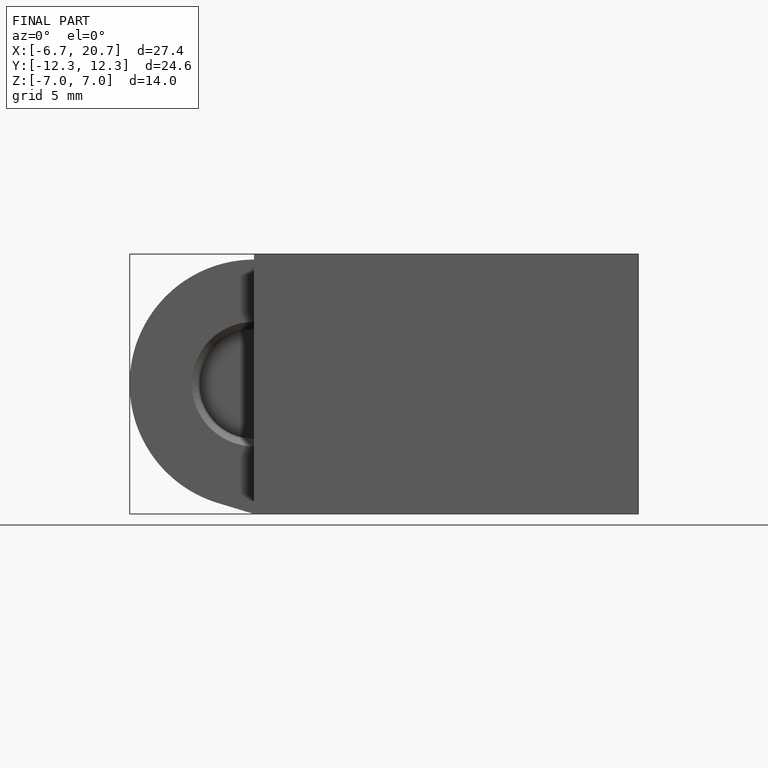
[diagram: finished part — front view with bounding-box wireframe]
